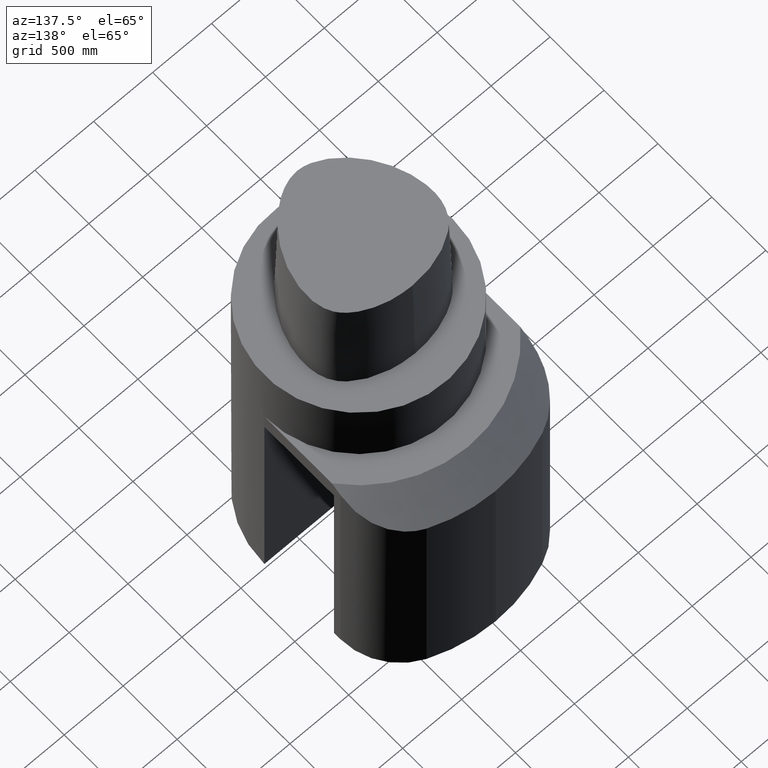
[diagram: clean part render]
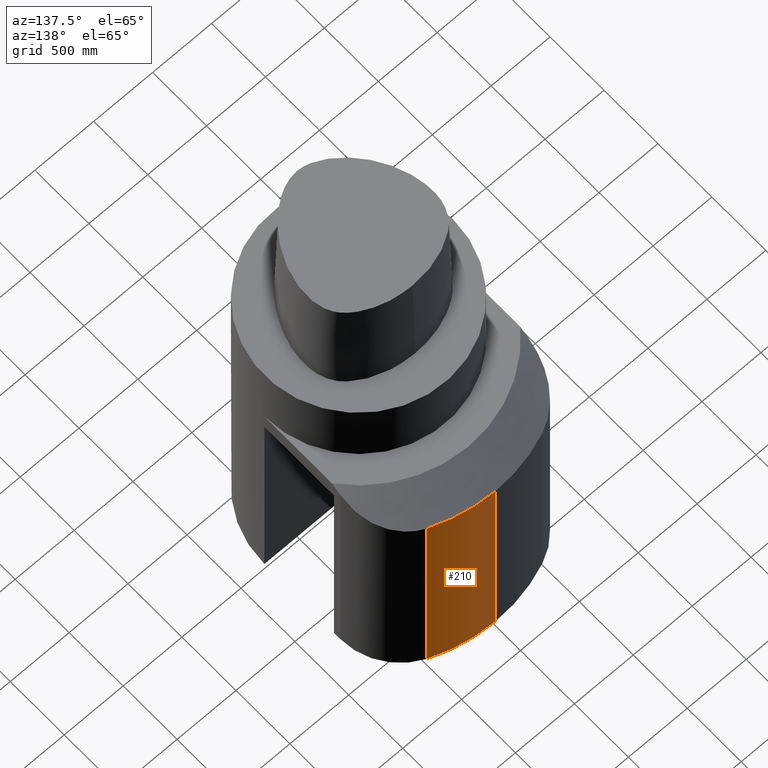
[diagram: same view with one face highlighted and labeled with its STEP entity id]
A machine part, auxiliary view. The second image highlights one B-rep face of the part: STEP entity #210.
In plain terms, the highlighted cylindrical surface (partial cylindrical patch) has radius 1270 mm, axis along (0, -0, -1).
Its self-contained STEP definition (entity closure, byte-faithful):
#119=EDGE_CURVE('Unnamed[1]',#299,#300,#301,.T.);
#143=EDGE_CURVE('Unnamed[1]',#337,#300,#338,.T.);
#150=EDGE_CURVE('Unnamed[1]',#280,#299,#347,.T.);
#182=EDGE_CURVE('Unnamed[1]',#337,#280,#383,.T.);
#210=ADVANCED_FACE('Unnamed[1]',(#419),#420,.T.);
#280=VERTEX_POINT('',#593);
#299=VERTEX_POINT('',#700);
#300=VERTEX_POINT('',#701);
#301=LINE('',#702,#703);
#337=VERTEX_POINT('',#771);
#338=CIRCLE('',#772,50.0000000000007);
#347=CIRCLE('',#785,50.0000000000006);
#383=LINE('',#875,#876);
#419=FACE_OUTER_BOUND('',#943,.T.);
#420=CYLINDRICAL_SURFACE('',#944,50.0000000000007);
#593=CARTESIAN_POINT('',(0.00215974507375456,49.9999999533556,-33.9999999999993));
#700=CARTESIAN_POINT('',(19.4720041661765,46.0525900873389,-33.9999999999993));
#701=CARTESIAN_POINT('',(19.4720041661658,46.0525900873435,-110.000000000114));
#702=CARTESIAN_POINT('',(19.4720041661711,46.0525900873412,-224.0));
#703=VECTOR('',#1059,1.0);
#771=CARTESIAN_POINT('',(0.00215974638974273,49.9999999533557,-110.000000000114));
#772=AXIS2_PLACEMENT_3D('',#1085,#1086,#1087);
#785=AXIS2_PLACEMENT_3D('',#1099,#1100,#1101);
#875=CARTESIAN_POINT('',(0.00215974570544769,49.9999999533556,-224.0));
#876=VECTOR('',#1130,1.0);
#943=EDGE_LOOP('',(#1182,#1183,#1184,#1185));
#944=AXIS2_PLACEMENT_3D('',#1186,#1187,#1188);
#1059=DIRECTION('',(1.22464679914735E-016,-6.12323399573677E-017,-1.0));
#1085=CARTESIAN_POINT('',(1.34711147906349E-014,-6.73555739531744E-015,-110.000000000114));
#1086=DIRECTION('',(1.22464679914735E-016,-6.12323399573677E-017,-1.0));
#1087=DIRECTION('',(-1.0,1.83697019872103E-016,-1.22464679914735E-016));
#1099=CARTESIAN_POINT('',(4.16379911710091E-015,-2.08189955855046E-015,-33.9999999999993));
#1100=DIRECTION('',(1.22464679914735E-016,-6.12323399573677E-017,-1.0));
#1101=DIRECTION('',(-1.0,1.83697019872103E-016,-1.22464679914735E-016));
#1130=DIRECTION('',(-1.22464679914735E-016,6.12323399573677E-017,1.0));
#1182=ORIENTED_EDGE('',*,*,#119,.T.);
#1183=ORIENTED_EDGE('',*,*,#143,.F.);
#1184=ORIENTED_EDGE('',*,*,#182,.T.);
#1185=ORIENTED_EDGE('',*,*,#150,.T.);
#1186=CARTESIAN_POINT('',(8.81745695386789E-015,-4.40872847693395E-015,-72.0000000000567));
#1187=DIRECTION('',(1.22464679914735E-016,-6.12323399573677E-017,-1.0));
#1188=DIRECTION('',(-1.0,1.83697019872103E-016,-1.22464679914735E-016));